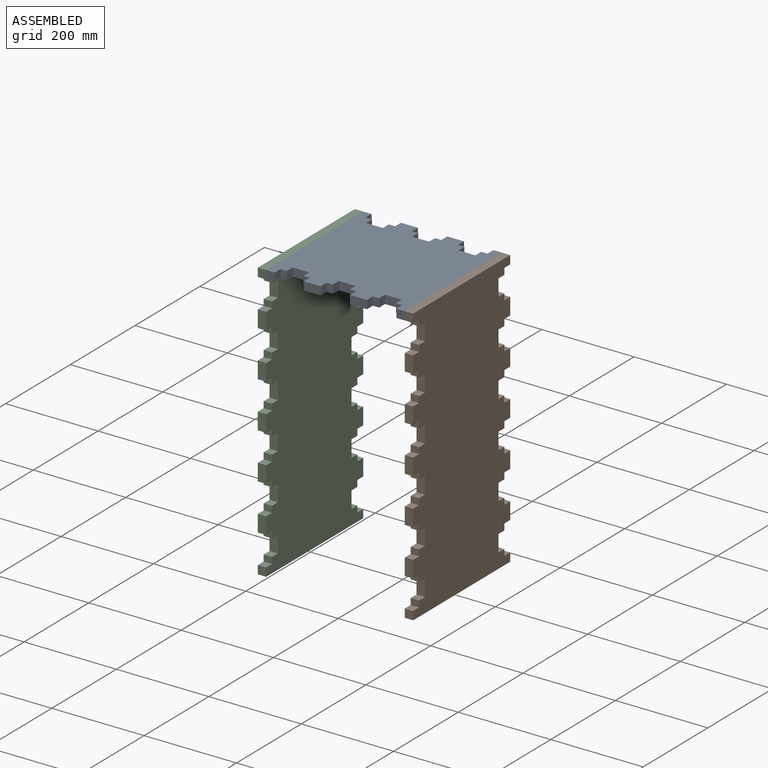
[diagram: assembled view]
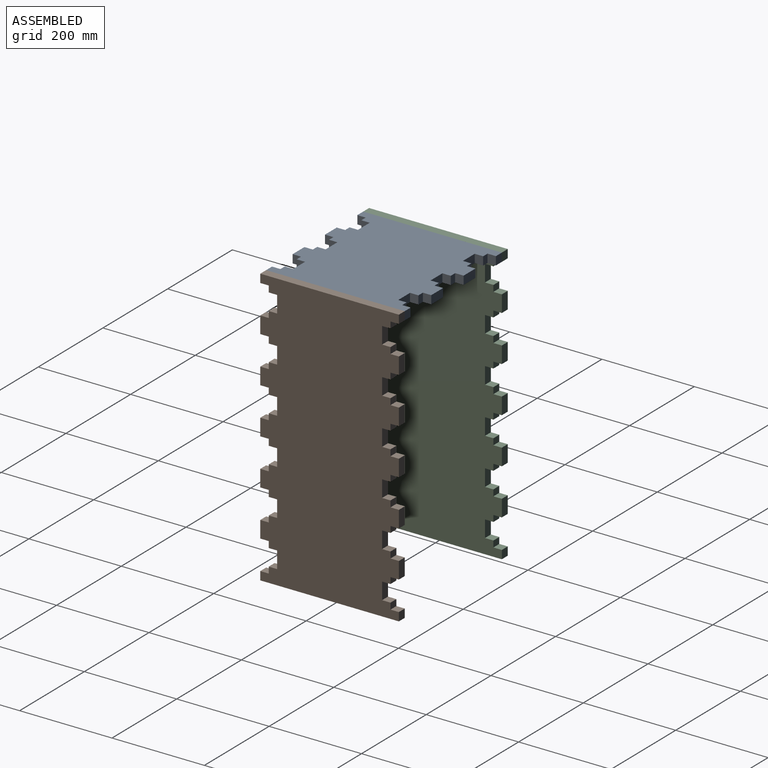
[diagram: assembled view, second angle]
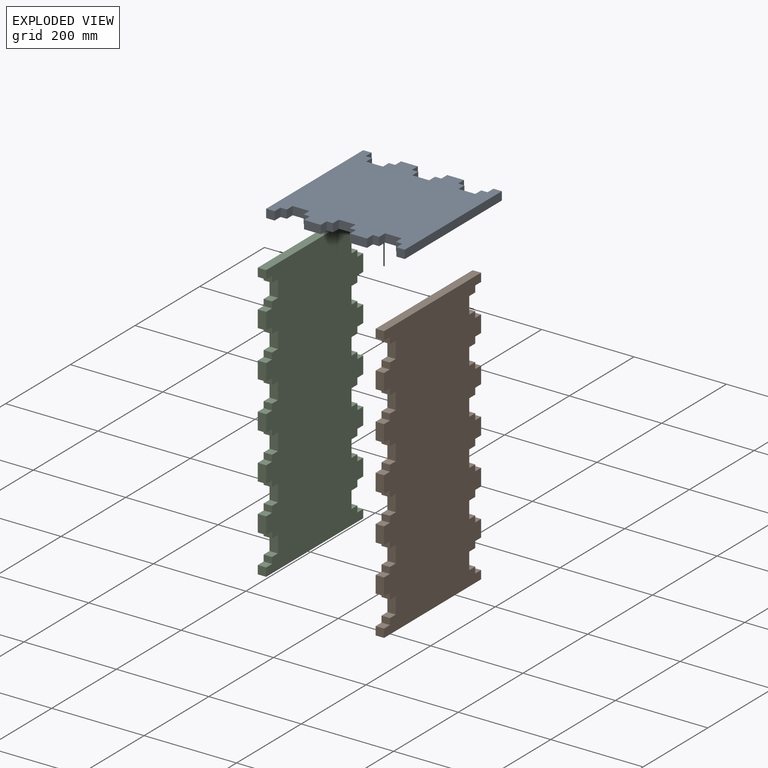
[diagram: exploded view]
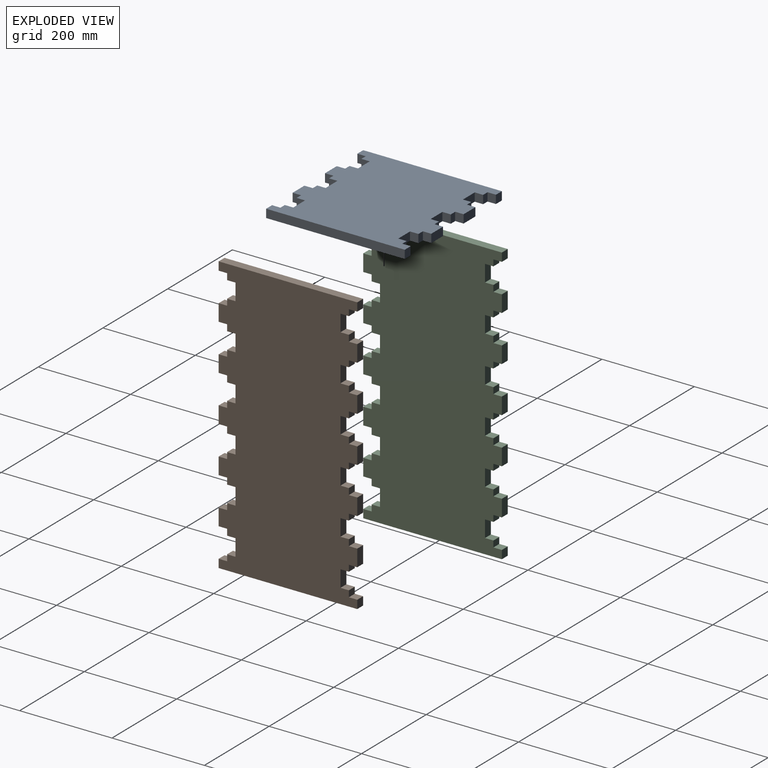
[diagram: exploded view, second angle]
ASSEMBLY  parts=3 mates=2
PART A: 54 faces, bbox 18.2x300x300 mm
  f0: plane 300x18.2mm, normal (0,0,-1), area 5460mm2, adj f1,f18,f19,f20
  f1: plane 18.2x18.2mm, normal (0,1,0), area 331.2mm2, adj f0,f2,f19,f20
  f2: plane 18.2x18.2mm, normal (0,0,1), area 331.2mm2, adj f1,f3,f19,f20
  f3: plane 18.2x13.6mm, normal (0,1,0), area 247.5mm2, adj f2,f4,f19,f20
  f4: plane 18.2x18.2mm, normal (0,0,1), area 331.2mm2, adj f3,f5,f19,f20
  f5: plane 36.4x18.2mm, normal (0,1,0), area 662.5mm2, adj f4,f6,f19,f20
  f6: plane 18.2x18.2mm, normal (0,0,-1), area 331.2mm2, adj f5,f7,f19,f20
  f7: plane 18.2x13.6mm, normal (0,1,0), area 247.5mm2, adj f6,f8,f19,f20
  f8: plane 18.2x18.2mm, normal (0,0,-1), area 331.2mm2, adj f7,f9,f19,f20
  f9: plane 36.4x18.2mm, normal (0,1,0), area 662.5mm2, adj f8,f19,f20,f21
  f10: plane 36.4x18.2mm, normal (0,-1,0), area 662.5mm2, adj f11,f19,f20,f36
  f11: plane 18.2x18.2mm, normal (0,0,-1), area 331.2mm2, adj f10,f12,f19,f20
  f12: plane 18.2x13.6mm, normal (0,-1,0), area 247.5mm2, adj f11,f13,f19,f20
  f13: plane 18.2x18.2mm, normal (0,0,-1), area 331.2mm2, adj f12,f14,f19,f20
  f14: plane 36.4x18.2mm, normal (0,-1,0), area 662.5mm2, adj f13,f15,f19,f20
  f15: plane 18.2x18.2mm, normal (0,0,1), area 331.2mm2, adj f14,f16,f19,f20
  f16: plane 18.2x13.6mm, normal (0,-1,0), area 247.5mm2, adj f15,f17,f19,f20
  f17: plane 18.2x18.2mm, normal (0,0,1), area 331.2mm2, adj f16,f18,f19,f20
  f18: plane 18.2x18.2mm, normal (0,-1,0), area 331.2mm2, adj f0,f17,f19,f20
  f19: plane 300x300mm, normal (1,0,0), area 79080mm2, adj f0,f1,f2,f3,f4,f5,f6,f7
  f20: plane 300x300mm, normal (-1,0,0), area 79080mm2, adj f0,f1,f2,f3,f4,f5,f6,f7
  f21: plane 18.2x18.2mm, normal (0,0,1), area 331.2mm2, adj f9,f19,f20,f22
  f22: plane 18.2x13.6mm, normal (0,1,0), area 247.5mm2, adj f19,f20,f21,f23
  f23: plane 18.2x18.2mm, normal (0,0,1), area 331.2mm2, adj f19,f20,f22,f24
  f24: plane 36.4x18.2mm, normal (0,1,0), area 662.5mm2, adj f19,f20,f23,f25
  f25: plane 18.2x18.2mm, normal (0,0,-1), area 331.2mm2, adj f19,f20,f24,f26
  f26: plane 18.2x13.6mm, normal (0,1,0), area 247.5mm2, adj f19,f20,f25,f27
  f27: plane 18.2x18.2mm, normal (0,0,-1), area 331.2mm2, adj f19,f20,f26,f28
  f28: plane 36.4x18.2mm, normal (0,1,0), area 662.5mm2, adj f19,f20,f27,f37
  f29: plane 36.4x18.2mm, normal (0,-1,0), area 662.5mm2, adj f19,f20,f30,f53
  f30: plane 18.2x18.2mm, normal (0,0,-1), area 331.2mm2, adj f19,f20,f29,f31
  f31: plane 18.2x13.6mm, normal (0,-1,0), area 247.5mm2, adj f19,f20,f30,f32
  f32: plane 18.2x18.2mm, normal (0,0,-1), area 331.2mm2, adj f19,f20,f31,f33
  f33: plane 36.4x18.2mm, normal (0,-1,0), area 662.5mm2, adj f19,f20,f32,f34
  f34: plane 18.2x18.2mm, normal (0,0,1), area 331.2mm2, adj f19,f20,f33,f35
  f35: plane 18.2x13.6mm, normal (0,-1,0), area 247.5mm2, adj f19,f20,f34,f36
  f36: plane 18.2x18.2mm, normal (0,0,1), area 331.2mm2, adj f10,f19,f20,f35
  f37: plane 18.2x18.2mm, normal (0,0,1), area 331.2mm2, adj f19,f20,f28,f38
  f38: plane 18.2x13.6mm, normal (0,1,0), area 247.5mm2, adj f19,f20,f37,f39
  f39: plane 18.2x18.2mm, normal (0,0,1), area 331.2mm2, adj f19,f20,f38,f40
  f40: plane 36.4x18.2mm, normal (0,1,0), area 662.5mm2, adj f19,f20,f39,f41
  f41: plane 18.2x18.2mm, normal (0,0,-1), area 331.2mm2, adj f19,f20,f40,f42
  f42: plane 18.2x13.6mm, normal (0,1,0), area 247.5mm2, adj f19,f20,f41,f43
  f43: plane 18.2x18.2mm, normal (0,0,-1), area 331.2mm2, adj f19,f20,f42,f44
  f44: plane 18.2x18.2mm, normal (0,1,0), area 331.2mm2, adj f19,f20,f43,f45
  f45: plane 300x18.2mm, normal (0,0,1), area 5460mm2, adj f19,f20,f44,f46
  f46: plane 18.2x18.2mm, normal (0,-1,0), area 331.2mm2, adj f19,f20,f45,f47
  f47: plane 18.2x18.2mm, normal (0,0,-1), area 331.2mm2, adj f19,f20,f46,f48
  f48: plane 18.2x13.6mm, normal (0,-1,0), area 247.5mm2, adj f19,f20,f47,f49
  f49: plane 18.2x18.2mm, normal (0,0,-1), area 331.2mm2, adj f19,f20,f48,f50
  f50: plane 36.4x18.2mm, normal (0,-1,0), area 662.5mm2, adj f19,f20,f49,f51
  f51: plane 18.2x18.2mm, normal (0,0,1), area 331.2mm2, adj f19,f20,f50,f52
  f52: plane 18.2x13.6mm, normal (0,-1,0), area 247.5mm2, adj f19,f20,f51,f53
  f53: plane 18.2x18.2mm, normal (0,0,1), area 331.2mm2, adj f19,f20,f29,f52
PART B: 102 faces, bbox 18.2x300x600 mm
  f0: plane 300x18.2mm, normal (0,0,-1), area 5460mm2, adj f1,f18,f19,f20
  f1: plane 18.2x18.2mm, normal (0,1,0), area 331.2mm2, adj f0,f2,f19,f20
  f2: plane 18.2x18.2mm, normal (0,0,1), area 331.2mm2, adj f1,f3,f19,f20
  f3: plane 18.2x13.6mm, normal (0,1,0), area 247.5mm2, adj f2,f4,f19,f20
  f4: plane 18.2x18.2mm, normal (0,0,1), area 331.2mm2, adj f3,f5,f19,f20
  f5: plane 36.4x18.2mm, normal (0,1,0), area 662.5mm2, adj f4,f6,f19,f20
  f6: plane 18.2x18.2mm, normal (0,0,-1), area 331.2mm2, adj f5,f7,f19,f20
  f7: plane 18.2x13.6mm, normal (0,1,0), area 247.5mm2, adj f6,f8,f19,f20
  f8: plane 18.2x18.2mm, normal (0,0,-1), area 331.2mm2, adj f7,f9,f19,f20
  f9: plane 36.4x18.2mm, normal (0,1,0), area 662.5mm2, adj f8,f19,f20,f21
  f10: plane 36.4x18.2mm, normal (0,-1,0), area 662.5mm2, adj f11,f19,f20,f36
  f11: plane 18.2x18.2mm, normal (0,0,-1), area 331.2mm2, adj f10,f12,f19,f20
  f12: plane 18.2x13.6mm, normal (0,-1,0), area 247.5mm2, adj f11,f13,f19,f20
  f13: plane 18.2x18.2mm, normal (0,0,-1), area 331.2mm2, adj f12,f14,f19,f20
  f14: plane 36.4x18.2mm, normal (0,-1,0), area 662.5mm2, adj f13,f15,f19,f20
  f15: plane 18.2x18.2mm, normal (0,0,1), area 331.2mm2, adj f14,f16,f19,f20
  f16: plane 18.2x13.6mm, normal (0,-1,0), area 247.5mm2, adj f15,f17,f19,f20
  f17: plane 18.2x18.2mm, normal (0,0,1), area 331.2mm2, adj f16,f18,f19,f20
  f18: plane 18.2x18.2mm, normal (0,-1,0), area 331.2mm2, adj f0,f17,f19,f20
  f19: plane 600x300mm, normal (1,0,0), area 158160mm2, adj f0,f1,f2,f3,f4,f5,f6,f7
  f20: plane 600x300mm, normal (-1,0,0), area 158160mm2, adj f0,f1,f2,f3,f4,f5,f6,f7
  f21: plane 18.2x18.2mm, normal (0,0,1), area 331.2mm2, adj f9,f19,f20,f22
  f22: plane 18.2x13.6mm, normal (0,1,0), area 247.5mm2, adj f19,f20,f21,f23
  f23: plane 18.2x18.2mm, normal (0,0,1), area 331.2mm2, adj f19,f20,f22,f24
  f24: plane 36.4x18.2mm, normal (0,1,0), area 662.5mm2, adj f19,f20,f23,f25
  f25: plane 18.2x18.2mm, normal (0,0,-1), area 331.2mm2, adj f19,f20,f24,f26
  f26: plane 18.2x13.6mm, normal (0,1,0), area 247.5mm2, adj f19,f20,f25,f27
  f27: plane 18.2x18.2mm, normal (0,0,-1), area 331.2mm2, adj f19,f20,f26,f28
  f28: plane 36.4x18.2mm, normal (0,1,0), area 662.5mm2, adj f19,f20,f27,f37
  f29: plane 36.4x18.2mm, normal (0,-1,0), area 662.5mm2, adj f19,f20,f30,f52
  f30: plane 18.2x18.2mm, normal (0,0,-1), area 331.2mm2, adj f19,f20,f29,f31
  f31: plane 18.2x13.6mm, normal (0,-1,0), area 247.5mm2, adj f19,f20,f30,f32
  f32: plane 18.2x18.2mm, normal (0,0,-1), area 331.2mm2, adj f19,f20,f31,f33
  f33: plane 36.4x18.2mm, normal (0,-1,0), area 662.5mm2, adj f19,f20,f32,f34
  f34: plane 18.2x18.2mm, normal (0,0,1), area 331.2mm2, adj f19,f20,f33,f35
  f35: plane 18.2x13.6mm, normal (0,-1,0), area 247.5mm2, adj f19,f20,f34,f36
  f36: plane 18.2x18.2mm, normal (0,0,1), area 331.2mm2, adj f10,f19,f20,f35
  f37: plane 18.2x18.2mm, normal (0,0,1), area 331.2mm2, adj f19,f20,f28,f38
  f38: plane 18.2x13.6mm, normal (0,1,0), area 247.5mm2, adj f19,f20,f37,f39
  f39: plane 18.2x18.2mm, normal (0,0,1), area 331.2mm2, adj f19,f20,f38,f40
  f40: plane 36.4x18.2mm, normal (0,1,0), area 662.5mm2, adj f19,f20,f39,f41
  f41: plane 18.2x18.2mm, normal (0,0,-1), area 331.2mm2, adj f19,f20,f40,f42
  f42: plane 18.2x13.6mm, normal (0,1,0), area 247.5mm2, adj f19,f20,f41,f43
  f43: plane 18.2x18.2mm, normal (0,0,-1), area 331.2mm2, adj f19,f20,f42,f44
  f44: plane 36.4x18.2mm, normal (0,1,0), area 662.5mm2, adj f19,f20,f43,f53
  f45: plane 36.4x18.2mm, normal (0,-1,0), area 662.5mm2, adj f19,f20,f46,f68
  f46: plane 18.2x18.2mm, normal (0,0,-1), area 331.2mm2, adj f19,f20,f45,f47
  f47: plane 18.2x13.6mm, normal (0,-1,0), area 247.5mm2, adj f19,f20,f46,f48
  f48: plane 18.2x18.2mm, normal (0,0,-1), area 331.2mm2, adj f19,f20,f47,f49
  f49: plane 36.4x18.2mm, normal (0,-1,0), area 662.5mm2, adj f19,f20,f48,f50
  f50: plane 18.2x18.2mm, normal (0,0,1), area 331.2mm2, adj f19,f20,f49,f51
  f51: plane 18.2x13.6mm, normal (0,-1,0), area 247.5mm2, adj f19,f20,f50,f52
  f52: plane 18.2x18.2mm, normal (0,0,1), area 331.2mm2, adj f19,f20,f29,f51
  f53: plane 18.2x18.2mm, normal (0,0,1), area 331.2mm2, adj f19,f20,f44,f54
  f54: plane 18.2x13.6mm, normal (0,1,0), area 247.5mm2, adj f19,f20,f53,f55
  f55: plane 18.2x18.2mm, normal (0,0,1), area 331.2mm2, adj f19,f20,f54,f56
  f56: plane 36.4x18.2mm, normal (0,1,0), area 662.5mm2, adj f19,f20,f55,f57
  f57: plane 18.2x18.2mm, normal (0,0,-1), area 331.2mm2, adj f19,f20,f56,f58
  f58: plane 18.2x13.6mm, normal (0,1,0), area 247.5mm2, adj f19,f20,f57,f59
  f59: plane 18.2x18.2mm, normal (0,0,-1), area 331.2mm2, adj f19,f20,f58,f60
  f60: plane 36.4x18.2mm, normal (0,1,0), area 662.5mm2, adj f19,f20,f59,f69
  f61: plane 36.4x18.2mm, normal (0,-1,0), area 662.5mm2, adj f19,f20,f62,f84
  f62: plane 18.2x18.2mm, normal (0,0,-1), area 331.2mm2, adj f19,f20,f61,f63
  f63: plane 18.2x13.6mm, normal (0,-1,0), area 247.5mm2, adj f19,f20,f62,f64
  f64: plane 18.2x18.2mm, normal (0,0,-1), area 331.2mm2, adj f19,f20,f63,f65
  f65: plane 36.4x18.2mm, normal (0,-1,0), area 662.5mm2, adj f19,f20,f64,f66
  f66: plane 18.2x18.2mm, normal (0,0,1), area 331.2mm2, adj f19,f20,f65,f67
  f67: plane 18.2x13.6mm, normal (0,-1,0), area 247.5mm2, adj f19,f20,f66,f68
  f68: plane 18.2x18.2mm, normal (0,0,1), area 331.2mm2, adj f19,f20,f45,f67
  f69: plane 18.2x18.2mm, normal (0,0,1), area 331.2mm2, adj f19,f20,f60,f70
  f70: plane 18.2x13.6mm, normal (0,1,0), area 247.5mm2, adj f19,f20,f69,f71
  f71: plane 18.2x18.2mm, normal (0,0,1), area 331.2mm2, adj f19,f20,f70,f72
  f72: plane 36.4x18.2mm, normal (0,1,0), area 662.5mm2, adj f19,f20,f71,f73
  f73: plane 18.2x18.2mm, normal (0,0,-1), area 331.2mm2, adj f19,f20,f72,f74
  f74: plane 18.2x13.6mm, normal (0,1,0), area 247.5mm2, adj f19,f20,f73,f75
  f75: plane 18.2x18.2mm, normal (0,0,-1), area 331.2mm2, adj f19,f20,f74,f76
  f76: plane 36.4x18.2mm, normal (0,1,0), area 662.5mm2, adj f19,f20,f75,f85
  f77: plane 36.4x18.2mm, normal (0,-1,0), area 662.5mm2, adj f19,f20,f78,f101
  f78: plane 18.2x18.2mm, normal (0,0,-1), area 331.2mm2, adj f19,f20,f77,f79
  f79: plane 18.2x13.6mm, normal (0,-1,0), area 247.5mm2, adj f19,f20,f78,f80
  f80: plane 18.2x18.2mm, normal (0,0,-1), area 331.2mm2, adj f19,f20,f79,f81
  f81: plane 36.4x18.2mm, normal (0,-1,0), area 662.5mm2, adj f19,f20,f80,f82
  f82: plane 18.2x18.2mm, normal (0,0,1), area 331.2mm2, adj f19,f20,f81,f83
  f83: plane 18.2x13.6mm, normal (0,-1,0), area 247.5mm2, adj f19,f20,f82,f84
  f84: plane 18.2x18.2mm, normal (0,0,1), area 331.2mm2, adj f19,f20,f61,f83
  f85: plane 18.2x18.2mm, normal (0,0,1), area 331.2mm2, adj f19,f20,f76,f86
  f86: plane 18.2x13.6mm, normal (0,1,0), area 247.5mm2, adj f19,f20,f85,f87
  f87: plane 18.2x18.2mm, normal (0,0,1), area 331.2mm2, adj f19,f20,f86,f88
  f88: plane 36.4x18.2mm, normal (0,1,0), area 662.5mm2, adj f19,f20,f87,f89
  f89: plane 18.2x18.2mm, normal (0,0,-1), area 331.2mm2, adj f19,f20,f88,f90
  f90: plane 18.2x13.6mm, normal (0,1,0), area 247.5mm2, adj f19,f20,f89,f91
  f91: plane 18.2x18.2mm, normal (0,0,-1), area 331.2mm2, adj f19,f20,f90,f92
  f92: plane 18.2x18.2mm, normal (0,1,0), area 331.2mm2, adj f19,f20,f91,f93
  f93: plane 300x18.2mm, normal (0,0,1), area 5460mm2, adj f19,f20,f92,f94
  f94: plane 18.2x18.2mm, normal (0,-1,0), area 331.2mm2, adj f19,f20,f93,f95
  f95: plane 18.2x18.2mm, normal (0,0,-1), area 331.2mm2, adj f19,f20,f94,f96
  f96: plane 18.2x13.6mm, normal (0,-1,0), area 247.5mm2, adj f19,f20,f95,f97
  f97: plane 18.2x18.2mm, normal (0,0,-1), area 331.2mm2, adj f19,f20,f96,f98
  f98: plane 36.4x18.2mm, normal (0,-1,0), area 662.5mm2, adj f19,f20,f97,f99
  f99: plane 18.2x18.2mm, normal (0,0,1), area 331.2mm2, adj f19,f20,f98,f100
  f100: plane 18.2x13.6mm, normal (0,-1,0), area 247.5mm2, adj f19,f20,f99,f101
  f101: plane 18.2x18.2mm, normal (0,0,1), area 331.2mm2, adj f19,f20,f77,f100
PART C: same geometry as B
PLACE A rot(axis=(0,-1,0),90deg) t=(309.1,0,590.9)mm
PLACE B t=(318.2,0,0)mm
PLACE C at identity fixed
MATE fastened A.f46 <-> C.f94  axis (0,-1,0) through (9.1,-150,590.9)mm
MATE fastened A.f18 <-> B.f94  axis (0,-1,0) through (309.1,-150,590.9)mm
